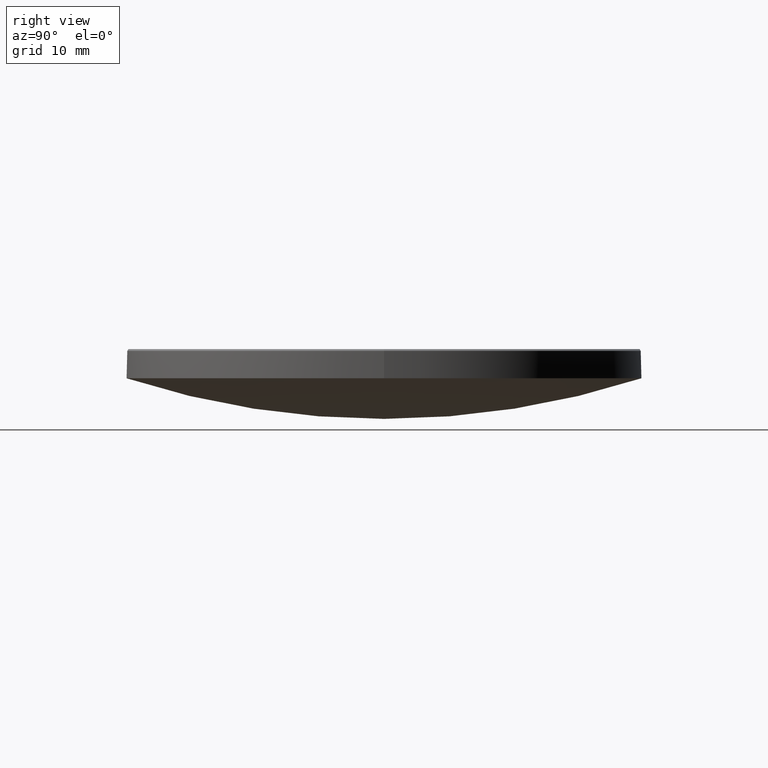
[diagram: clean part render]
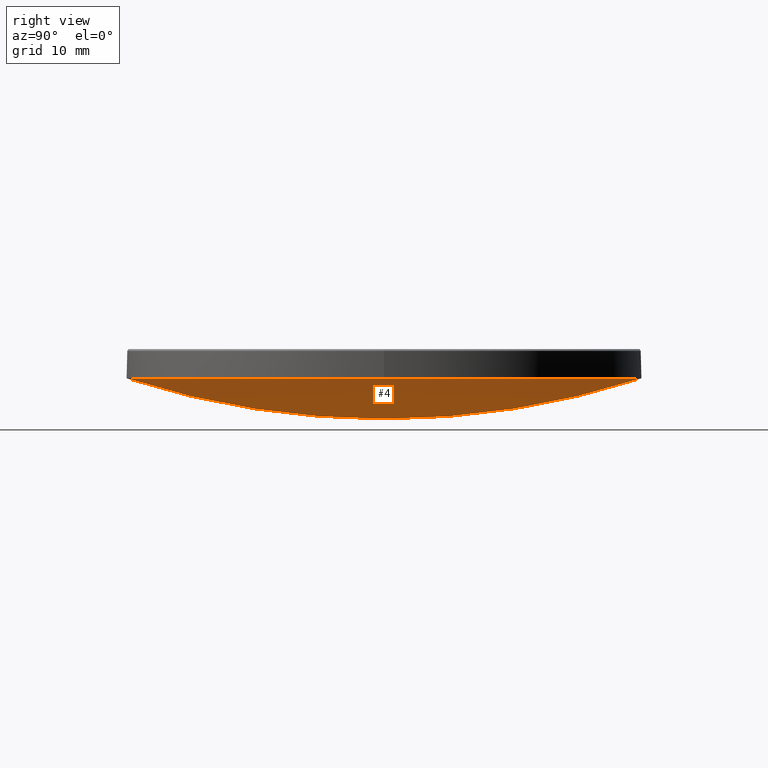
[diagram: same view with one face highlighted and labeled with its STEP entity id]
A machine part, right view. The second image highlights one B-rep face of the part: STEP entity #4.
In plain terms, the highlighted spherical surface has radius 82.54 mm.
Its self-contained STEP definition (entity closure, byte-faithful):
#1 = DIRECTION ( 'NONE',  ( 1.000000000000000000, -0.000000000000000000, 0.000000000000000000 ) ) ;
#4 = ADVANCED_FACE ( 'NONE', ( #142 ), #46, .T. ) ;
#9 = DIRECTION ( 'NONE',  ( -1.000000000000000000, 1.224646799147353207E-16, 0.000000000000000000 ) ) ;
#12 = AXIS2_PLACEMENT_3D ( 'NONE', #33, #117, #119 ) ;
#19 = CARTESIAN_POINT ( 'NONE',  ( 25.39999999999999503, 3.110602869834276471E-15, 13.00000000000000000 ) ) ;
#26 = VERTEX_POINT ( 'NONE', #19 ) ;
#31 = DIRECTION ( 'NONE',  ( -1.224646799147352961E-16, -1.000000000000000000, 0.000000000000000000 ) ) ;
#33 = CARTESIAN_POINT ( 'NONE',  ( 0.000000000000000000, 0.000000000000000000, 13.00000000000000000 ) ) ;
#46 = SPHERICAL_SURFACE ( 'NONE', #154, 82.54000000000000625 ) ;
#56 = CARTESIAN_POINT ( 'NONE',  ( 0.000000000000000000, 0.000000000000000000, 91.53465222435252713 ) ) ;
#76 = CARTESIAN_POINT ( 'NONE',  ( 0.000000000000000000, 5.054117340081126317E-15, 8.994652224352527980 ) ) ;
#81 = ORIENTED_EDGE ( 'NONE', *, *, #206, .F. ) ;
#85 = CIRCLE ( 'NONE', #138, 25.39999999999999503 ) ;
#111 = CARTESIAN_POINT ( 'NONE',  ( 0.000000000000000000, 0.000000000000000000, 91.53465222435252713 ) ) ;
#116 = EDGE_CURVE ( 'NONE', #191, #266, #207, .T. ) ;
#117 = DIRECTION ( 'NONE',  ( -0.000000000000000000, -0.000000000000000000, 1.000000000000000000 ) ) ;
#119 = DIRECTION ( 'NONE',  ( 1.000000000000000000, 0.000000000000000000, 0.000000000000000000 ) ) ;
#138 = AXIS2_PLACEMENT_3D ( 'NONE', #156, #236, #143 ) ;
#142 = FACE_OUTER_BOUND ( 'NONE', #230, .T. ) ;
#143 = DIRECTION ( 'NONE',  ( 1.000000000000000000, 0.000000000000000000, 0.000000000000000000 ) ) ;
#145 = VERTEX_POINT ( 'NONE', #181 ) ;
#154 = AXIS2_PLACEMENT_3D ( 'NONE', #222, #198, #280 ) ;
#156 = CARTESIAN_POINT ( 'NONE',  ( 0.000000000000000000, 0.000000000000000000, 13.00000000000000000 ) ) ;
#160 = AXIS2_PLACEMENT_3D ( 'NONE', #111, #9, #31 ) ;
#168 = ORIENTED_EDGE ( 'NONE', *, *, #116, .F. ) ;
#170 = ORIENTED_EDGE ( 'NONE', *, *, #251, .F. ) ;
#181 = CARTESIAN_POINT ( 'NONE',  ( 0.000000000000000000, 25.39999999999999147, 12.99999999999999822 ) ) ;
#188 = EDGE_CURVE ( 'NONE', #191, #145, #241, .T. ) ;
#189 = AXIS2_PLACEMENT_3D ( 'NONE', #56, #1, #265 ) ;
#191 = VERTEX_POINT ( 'NONE', #76 ) ;
#194 = CIRCLE ( 'NONE', #12, 25.39999999999999503 ) ;
#198 = DIRECTION ( 'NONE',  ( -1.000000000000000000, 0.000000000000000000, 0.000000000000000000 ) ) ;
#206 = EDGE_CURVE ( 'NONE', #266, #26, #194, .T. ) ;
#207 = CIRCLE ( 'NONE', #160, 82.54000000000000625 ) ;
#217 = CARTESIAN_POINT ( 'NONE',  ( -3.110602869834276076E-15, -25.39999999999999147, 12.99999999999999822 ) ) ;
#222 = CARTESIAN_POINT ( 'NONE',  ( 0.000000000000000000, 0.000000000000000000, 91.53465222435252713 ) ) ;
#230 = EDGE_LOOP ( 'NONE', ( #168, #239, #170, #81 ) ) ;
#236 = DIRECTION ( 'NONE',  ( -0.000000000000000000, -0.000000000000000000, 1.000000000000000000 ) ) ;
#239 = ORIENTED_EDGE ( 'NONE', *, *, #188, .T. ) ;
#241 = CIRCLE ( 'NONE', #189, 82.54000000000000625 ) ;
#251 = EDGE_CURVE ( 'NONE', #26, #145, #85, .T. ) ;
#265 = DIRECTION ( 'NONE',  ( 0.000000000000000000, 0.000000000000000000, -1.000000000000000000 ) ) ;
#266 = VERTEX_POINT ( 'NONE', #217 ) ;
#280 = DIRECTION ( 'NONE',  ( 0.000000000000000000, 1.000000000000000000, 0.000000000000000000 ) ) ;